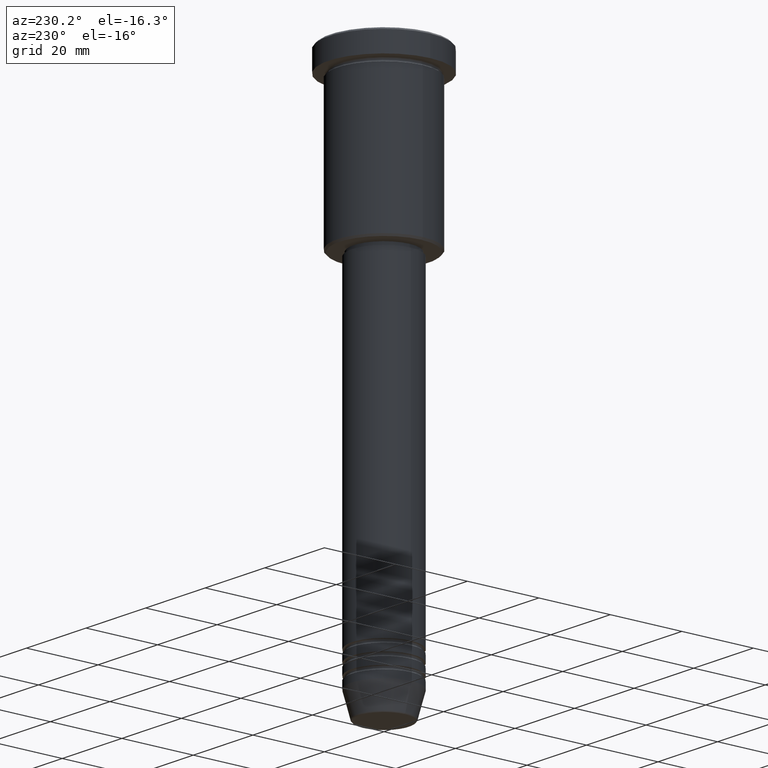
[diagram: clean part render]
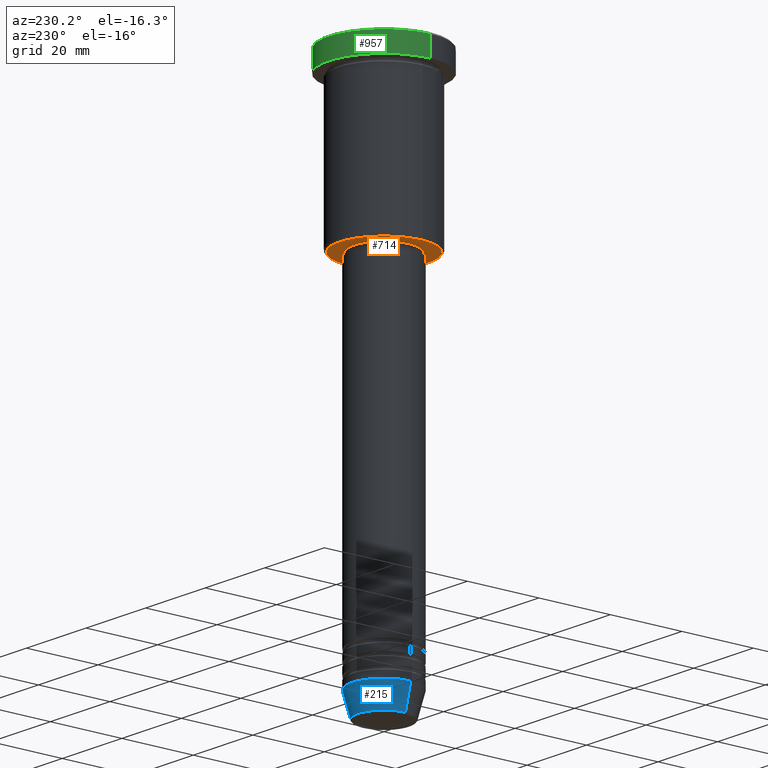
[diagram: same view with three faces highlighted in distinct colors, each labeled with its STEP entity id]
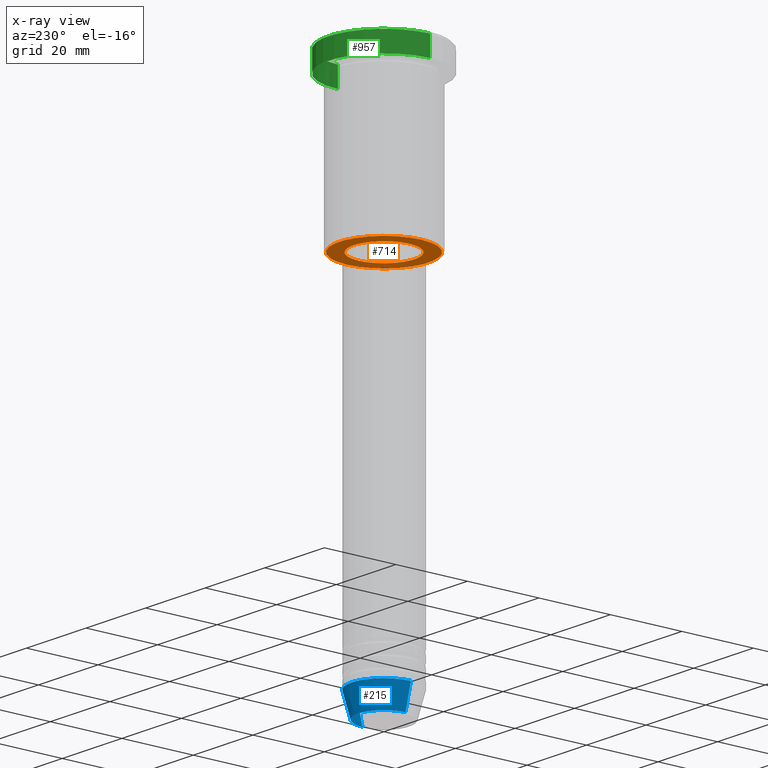
[diagram: x-ray of the same camera — body ghosted, the three highlighted faces saturated]
A machine part, auxiliary view with three faces highlighted in distinct colors.
The next image is the same camera in x-ray (body ghosted, the three faces saturated) — at least one of them is partly hidden behind the body in this view.
Their STEP definitions:

[orange] entity #714 — the highlighted planar face has unit normal (0, 0, -1).
#108 = DIRECTION ( 'NONE',  ( 1.000000000000000000, 0.000000000000000000, 0.000000000000000000 ) ) ;
#118 = CARTESIAN_POINT ( 'NONE',  ( 0.000000000000000000, 0.000000000000000000, -45.99999999999998579 ) ) ;
#138 = FACE_OUTER_BOUND ( 'NONE', #839, .T. ) ;
#153 = AXIS2_PLACEMENT_3D ( 'NONE', #885, #788, #692 ) ;
#200 = ORIENTED_EDGE ( 'NONE', *, *, #1095, .T. ) ;
#238 = CARTESIAN_POINT ( 'NONE',  ( 0.000000000000000000, 0.000000000000000000, -45.99999999999998579 ) ) ;
#288 = CIRCLE ( 'NONE', #673, 8.499999999999998224 ) ;
#360 = EDGE_CURVE ( 'NONE', #775, #978, #722, .T. ) ;
#368 = DIRECTION ( 'NONE',  ( -0.000000000000000000, -0.000000000000000000, 1.000000000000000000 ) ) ;
#420 = DIRECTION ( 'NONE',  ( 0.000000000000000000, 0.000000000000000000, -1.000000000000000000 ) ) ;
#460 = DIRECTION ( 'NONE',  ( 1.000000000000000000, 0.000000000000000000, 0.000000000000000000 ) ) ;
#464 = VERTEX_POINT ( 'NONE', #821 ) ;
#478 = CARTESIAN_POINT ( 'NONE',  ( 0.000000000000000000, 0.000000000000000000, -45.99999999999998579 ) ) ;
#570 = CIRCLE ( 'NONE', #153, 12.50000000000001066 ) ;
#616 = CARTESIAN_POINT ( 'NONE',  ( 0.000000000000000000, 13.00000000000000000, -45.99999999999998579 ) ) ;
#632 = AXIS2_PLACEMENT_3D ( 'NONE', #118, #841, #665 ) ;
#665 = DIRECTION ( 'NONE',  ( -1.000000000000000000, 0.000000000000000000, 0.000000000000000000 ) ) ;
#673 = AXIS2_PLACEMENT_3D ( 'NONE', #478, #930, #108 ) ;
#690 = AXIS2_PLACEMENT_3D ( 'NONE', #616, #420, #1061 ) ;
#692 = DIRECTION ( 'NONE',  ( -1.000000000000000000, 0.000000000000000000, 0.000000000000000000 ) ) ;
#714 = ADVANCED_FACE ( 'NONE', ( #138, #1148 ), #1045, .T. ) ;
#722 = CIRCLE ( 'NONE', #1058, 8.499999999999998224 ) ;
#771 = ORIENTED_EDGE ( 'NONE', *, *, #825, .T. ) ;
#775 = VERTEX_POINT ( 'NONE', #873 ) ;
#786 = ORIENTED_EDGE ( 'NONE', *, *, #1110, .T. ) ;
#788 = DIRECTION ( 'NONE',  ( 0.000000000000000000, 0.000000000000000000, -1.000000000000000000 ) ) ;
#812 = EDGE_LOOP ( 'NONE', ( #200, #879 ) ) ;
#821 = CARTESIAN_POINT ( 'NONE',  ( -12.50000000000001066, 1.561424668912876097E-15, -45.99999999999998579 ) ) ;
#825 = EDGE_CURVE ( 'NONE', #1049, #464, #570, .T. ) ;
#839 = EDGE_LOOP ( 'NONE', ( #771, #786 ) ) ;
#841 = DIRECTION ( 'NONE',  ( 0.000000000000000000, 0.000000000000000000, -1.000000000000000000 ) ) ;
#855 = CIRCLE ( 'NONE', #632, 12.50000000000001066 ) ;
#873 = CARTESIAN_POINT ( 'NONE',  ( -8.499999999999998224, 1.040949779275249943E-15, -45.99999999999998579 ) ) ;
#879 = ORIENTED_EDGE ( 'NONE', *, *, #360, .T. ) ;
#885 = CARTESIAN_POINT ( 'NONE',  ( 0.000000000000000000, 0.000000000000000000, -45.99999999999998579 ) ) ;
#930 = DIRECTION ( 'NONE',  ( -0.000000000000000000, -0.000000000000000000, 1.000000000000000000 ) ) ;
#978 = VERTEX_POINT ( 'NONE', #1155 ) ;
#1045 = PLANE ( 'NONE',  #690 ) ;
#1049 = VERTEX_POINT ( 'NONE', #1121 ) ;
#1058 = AXIS2_PLACEMENT_3D ( 'NONE', #238, #368, #460 ) ;
#1061 = DIRECTION ( 'NONE',  ( -1.000000000000000000, 0.000000000000000000, -0.000000000000000000 ) ) ;
#1095 = EDGE_CURVE ( 'NONE', #978, #775, #288, .T. ) ;
#1110 = EDGE_CURVE ( 'NONE', #464, #1049, #855, .T. ) ;
#1121 = CARTESIAN_POINT ( 'NONE',  ( 12.50000000000001066, 0.000000000000000000, -45.99999999999998579 ) ) ;
#1148 = FACE_BOUND ( 'NONE', #812, .T. ) ;
#1155 = CARTESIAN_POINT ( 'NONE',  ( 8.499999999999998224, 0.000000000000000000, -45.99999999999998579 ) ) ;

[blue] entity #215 — the highlighted conical surface has half-angle 15 deg.
#7 = VERTEX_POINT ( 'NONE', #814 ) ;
#36 = AXIS2_PLACEMENT_3D ( 'NONE', #224, #598, #977 ) ;
#64 = CARTESIAN_POINT ( 'NONE',  ( 7.223655072137196598, 0.000000000000000000, -150.6294095225512422 ) ) ;
#69 = CIRCLE ( 'NONE', #36, 9.000000000000000000 ) ;
#114 = DIRECTION ( 'NONE',  ( 1.000000000000000000, 0.000000000000000000, 0.000000000000000000 ) ) ;
#136 = EDGE_CURVE ( 'NONE', #236, #7, #391, .T. ) ;
#176 = EDGE_LOOP ( 'NONE', ( #554, #896, #1030, #924 ) ) ;
#204 = CARTESIAN_POINT ( 'NONE',  ( 0.000000000000000000, 0.000000000000000000, -150.6294095225512422 ) ) ;
#211 = CARTESIAN_POINT ( 'NONE',  ( 0.000000000000000000, 0.000000000000000000, -144.0000000000000000 ) ) ;
#215 = ADVANCED_FACE ( 'NONE', ( #1023 ), #792, .T. ) ;
#219 = DIRECTION ( 'NONE',  ( -0.000000000000000000, -0.000000000000000000, 1.000000000000000000 ) ) ;
#224 = CARTESIAN_POINT ( 'NONE',  ( 0.000000000000000000, 0.000000000000000000, -144.0000000000000000 ) ) ;
#236 = VERTEX_POINT ( 'NONE', #64 ) ;
#245 = VECTOR ( 'NONE', #920, 1000.000000000000000 ) ;
#252 = CARTESIAN_POINT ( 'NONE',  ( -9.000000000000000000, 1.102182119232617714E-15, -144.0000000000000000 ) ) ;
#301 = AXIS2_PLACEMENT_3D ( 'NONE', #204, #219, #114 ) ;
#391 = CIRCLE ( 'NONE', #301, 7.223655072137196598 ) ;
#449 = VERTEX_POINT ( 'NONE', #905 ) ;
#458 = EDGE_CURVE ( 'NONE', #236, #449, #621, .T. ) ;
#554 = ORIENTED_EDGE ( 'NONE', *, *, #136, .T. ) ;
#573 = DIRECTION ( 'NONE',  ( -0.000000000000000000, -0.000000000000000000, 1.000000000000000000 ) ) ;
#598 = DIRECTION ( 'NONE',  ( -0.000000000000000000, -0.000000000000000000, 1.000000000000000000 ) ) ;
#621 = LINE ( 'NONE', #723, #245 ) ;
#710 = CARTESIAN_POINT ( 'NONE',  ( -9.000000000000000000, 1.102182119232617714E-15, -144.0000000000000000 ) ) ;
#723 = CARTESIAN_POINT ( 'NONE',  ( 9.000000000000000000, 0.000000000000000000, -144.0000000000000000 ) ) ;
#748 = EDGE_CURVE ( 'NONE', #449, #866, #69, .T. ) ;
#792 = CONICAL_SURFACE ( 'NONE', #932, 9.000000000000000000, 0.2617993877991500740 ) ;
#814 = CARTESIAN_POINT ( 'NONE',  ( -7.223655072137197486, 9.934123627281769054E-16, -150.6294095225512422 ) ) ;
#834 = VECTOR ( 'NONE', #980, 1000.000000000000000 ) ;
#866 = VERTEX_POINT ( 'NONE', #710 ) ;
#896 = ORIENTED_EDGE ( 'NONE', *, *, #993, .T. ) ;
#905 = CARTESIAN_POINT ( 'NONE',  ( 9.000000000000000000, 0.000000000000000000, -144.0000000000000000 ) ) ;
#920 = DIRECTION ( 'NONE',  ( 0.2588190451025213501, 0.000000000000000000, 0.9659258262890680902 ) ) ;
#924 = ORIENTED_EDGE ( 'NONE', *, *, #458, .F. ) ;
#932 = AXIS2_PLACEMENT_3D ( 'NONE', #211, #573, #966 ) ;
#966 = DIRECTION ( 'NONE',  ( 1.000000000000000000, 0.000000000000000000, 0.000000000000000000 ) ) ;
#977 = DIRECTION ( 'NONE',  ( 1.000000000000000000, 0.000000000000000000, 0.000000000000000000 ) ) ;
#980 = DIRECTION ( 'NONE',  ( -0.2588190451025213501, 3.169619151431772337E-17, 0.9659258262890680902 ) ) ;
#993 = EDGE_CURVE ( 'NONE', #7, #866, #1065, .T. ) ;
#1023 = FACE_OUTER_BOUND ( 'NONE', #176, .T. ) ;
#1030 = ORIENTED_EDGE ( 'NONE', *, *, #748, .F. ) ;
#1065 = LINE ( 'NONE', #252, #834 ) ;

[green] entity #957 — the highlighted cylindrical surface (partial cylindrical patch) has radius 15.5 mm, axis along (-0, -0, 1).
#86 = AXIS2_PLACEMENT_3D ( 'NONE', #790, #974, #520 ) ;
#109 = ORIENTED_EDGE ( 'NONE', *, *, #831, .F. ) ;
#113 = AXIS2_PLACEMENT_3D ( 'NONE', #177, #619, #625 ) ;
#142 = CARTESIAN_POINT ( 'NONE',  ( 15.50000000000000000, 0.000000000000000000, 0.000000000000000000 ) ) ;
#177 = CARTESIAN_POINT ( 'NONE',  ( 0.000000000000000000, 0.000000000000000000, 0.000000000000000000 ) ) ;
#206 = CARTESIAN_POINT ( 'NONE',  ( -15.50000000000000000, 1.898202538678397557E-15, -5.999999999999995559 ) ) ;
#257 = CYLINDRICAL_SURFACE ( 'NONE', #113, 15.50000000000000000 ) ;
#259 = EDGE_CURVE ( 'NONE', #585, #1115, #912, .T. ) ;
#329 = ORIENTED_EDGE ( 'NONE', *, *, #259, .T. ) ;
#334 = CARTESIAN_POINT ( 'NONE',  ( 0.000000000000000000, 0.000000000000000000, -5.999999999999995559 ) ) ;
#430 = DIRECTION ( 'NONE',  ( -0.000000000000000000, -0.000000000000000000, 1.000000000000000000 ) ) ;
#441 = LINE ( 'NONE', #807, #971 ) ;
#479 = CARTESIAN_POINT ( 'NONE',  ( 15.50000000000000000, 0.000000000000000000, -5.999999999999995559 ) ) ;
#500 = DIRECTION ( 'NONE',  ( -0.000000000000000000, -0.000000000000000000, 1.000000000000000000 ) ) ;
#520 = DIRECTION ( 'NONE',  ( 1.000000000000000000, 0.000000000000000000, 0.000000000000000000 ) ) ;
#542 = VERTEX_POINT ( 'NONE', #479 ) ;
#585 = VERTEX_POINT ( 'NONE', #674 ) ;
#591 = CIRCLE ( 'NONE', #1098, 15.50000000000000000 ) ;
#619 = DIRECTION ( 'NONE',  ( -0.000000000000000000, -0.000000000000000000, 1.000000000000000000 ) ) ;
#625 = DIRECTION ( 'NONE',  ( 1.000000000000000000, 0.000000000000000000, 0.000000000000000000 ) ) ;
#674 = CARTESIAN_POINT ( 'NONE',  ( -15.50000000000000000, 1.898202538678397557E-15, -0.4999999999999848455 ) ) ;
#700 = DIRECTION ( 'NONE',  ( -0.000000000000000000, -0.000000000000000000, 1.000000000000000000 ) ) ;
#716 = ORIENTED_EDGE ( 'NONE', *, *, #967, .T. ) ;
#790 = CARTESIAN_POINT ( 'NONE',  ( 0.000000000000000000, 0.000000000000000000, -0.4999999999999848455 ) ) ;
#807 = CARTESIAN_POINT ( 'NONE',  ( -15.50000000000000000, 1.898202538678397557E-15, 0.000000000000000000 ) ) ;
#827 = CARTESIAN_POINT ( 'NONE',  ( 15.50000000000000000, 0.000000000000000000, -0.4999999999999848455 ) ) ;
#831 = EDGE_CURVE ( 'NONE', #542, #1115, #960, .T. ) ;
#840 = EDGE_CURVE ( 'NONE', #542, #1139, #591, .T. ) ;
#867 = DIRECTION ( 'NONE',  ( 1.000000000000000000, 0.000000000000000000, 0.000000000000000000 ) ) ;
#912 = CIRCLE ( 'NONE', #86, 15.50000000000000000 ) ;
#957 = ADVANCED_FACE ( 'NONE', ( #1172 ), #257, .T. ) ;
#960 = LINE ( 'NONE', #142, #1153 ) ;
#967 = EDGE_CURVE ( 'NONE', #1139, #585, #441, .T. ) ;
#971 = VECTOR ( 'NONE', #430, 1000.000000000000000 ) ;
#974 = DIRECTION ( 'NONE',  ( 0.000000000000000000, 0.000000000000000000, -1.000000000000000000 ) ) ;
#1006 = ORIENTED_EDGE ( 'NONE', *, *, #840, .T. ) ;
#1084 = EDGE_LOOP ( 'NONE', ( #1006, #716, #329, #109 ) ) ;
#1098 = AXIS2_PLACEMENT_3D ( 'NONE', #334, #500, #867 ) ;
#1115 = VERTEX_POINT ( 'NONE', #827 ) ;
#1139 = VERTEX_POINT ( 'NONE', #206 ) ;
#1153 = VECTOR ( 'NONE', #700, 1000.000000000000000 ) ;
#1172 = FACE_OUTER_BOUND ( 'NONE', #1084, .T. ) ;